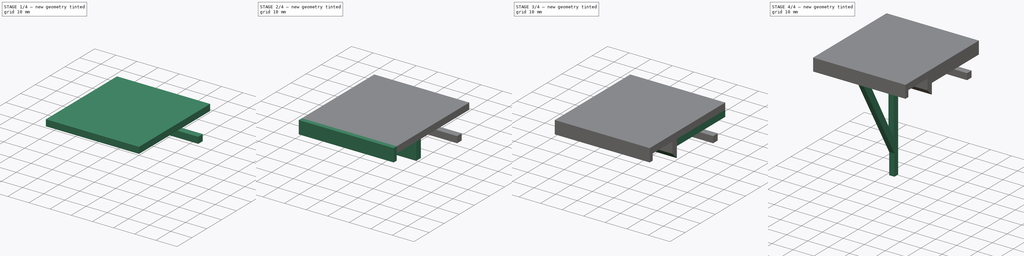
[diagram: build sequence overview — one tinted view per stage of 4, left to right]
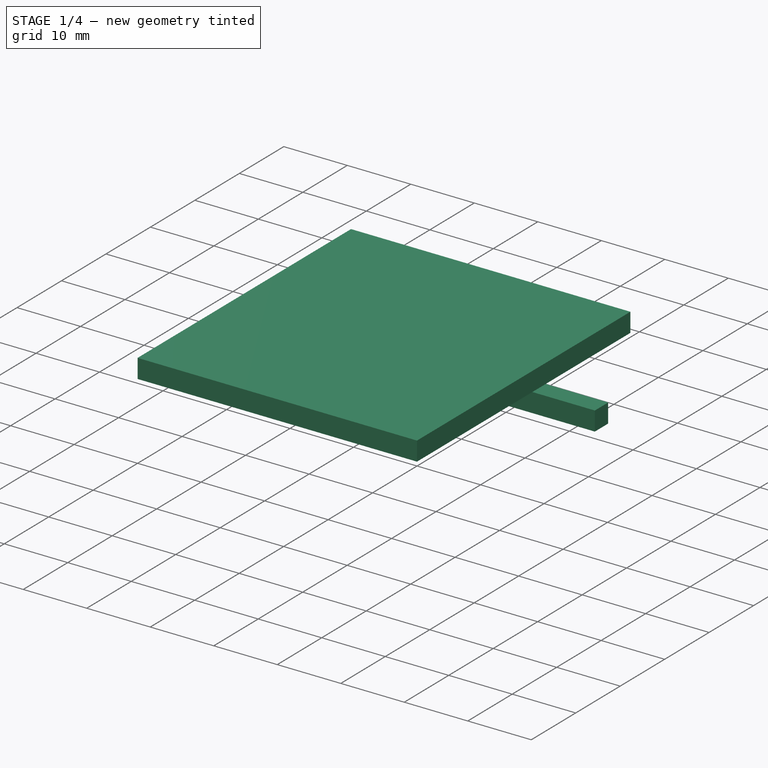
[diagram: stage 1 of 4 — iso view after this stage's code; geometry added in this stage tinted green]
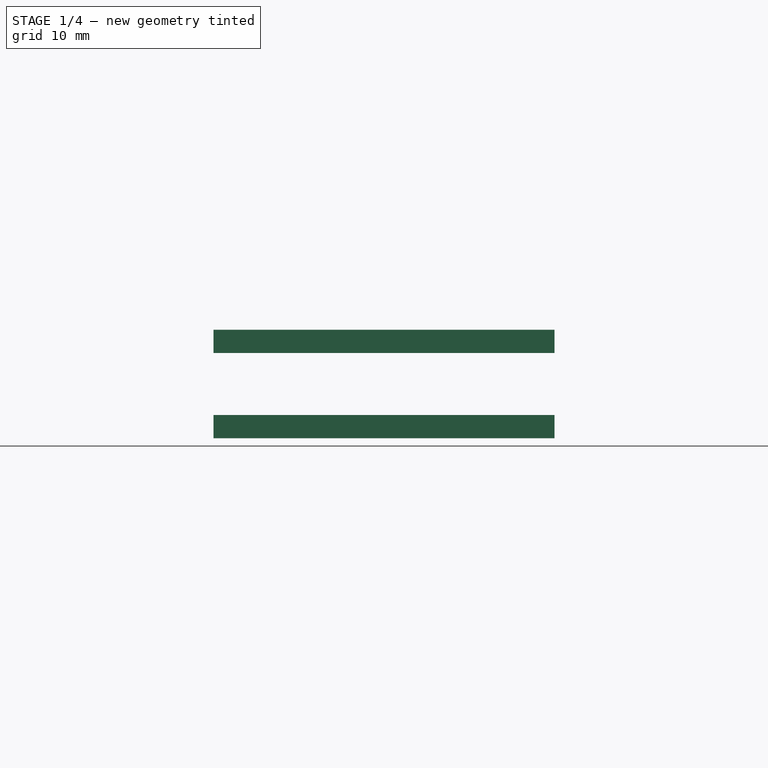
[diagram: stage 1 of 4 — front view after this stage's code; geometry added in this stage tinted green]
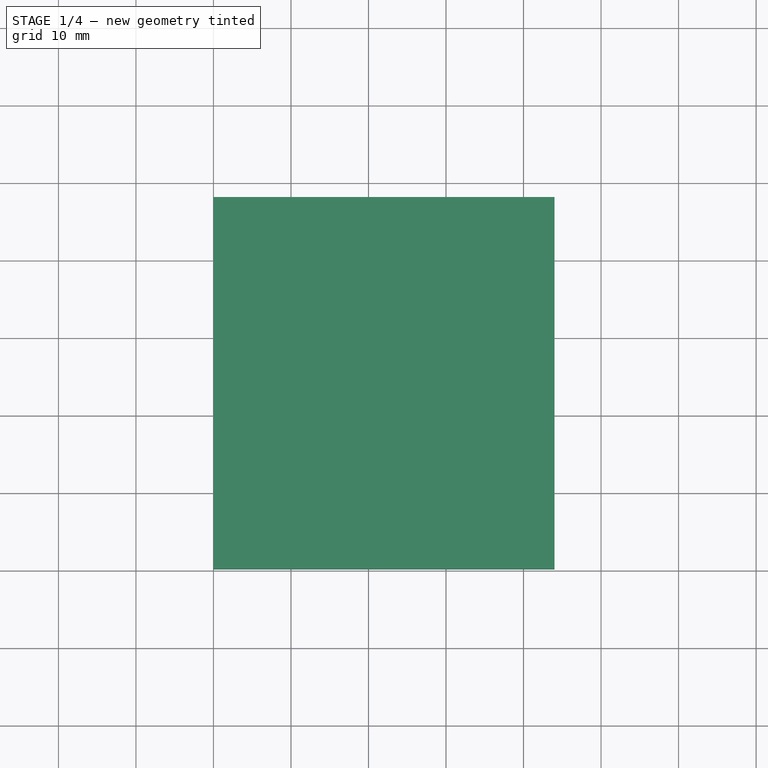
[diagram: stage 1 of 4 — top view after this stage's code; geometry added in this stage tinted green]
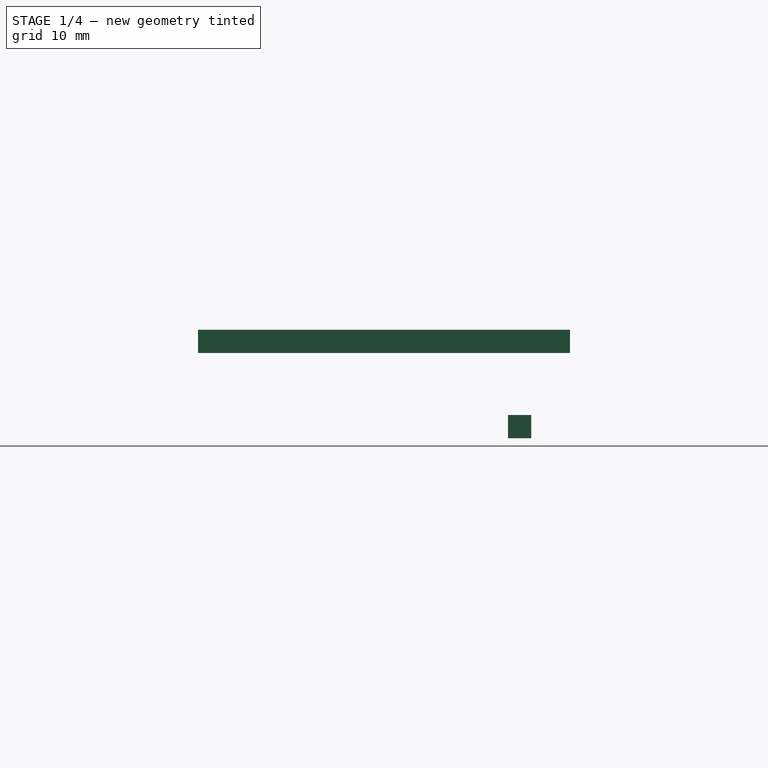
[diagram: stage 1 of 4 — right view after this stage's code; geometry added in this stage tinted green]
FCSTD DOCUMENT  (FreeCAD 1.0R39109 (Git))
Label: webcam.mount
License: All rights reserved
LicenseURL: http://en.wikipedia.org/wiki/All_rights_reserved
objects: PartDesign::AdditiveBox×5, PartDesign::Body×3, PartDesign::LinearPattern×2, PartDesign::Chamfer×1, Sketcher::SketchObject×1, PartDesign::Pad×1
note: 30 computed .brp shape members not serialized (recipe doc carries the construction recipe); baked Part::Feature solids carry a one-line shape summary decoded from their .brp

FEATURE [PartDesign::AdditiveBox] Box
  AttacherType = Attacher::AttachEngine3D
  AttachmentSupport = -> [XY_Plane]
  Height = 3
  Length = 44
  MapMode = 5
  Suppressed = false
  Width = 48
FEATURE [PartDesign::Body] Body  label="Plate"
  AllowCompound = false
  Group = -> [Box,Box001,Box002,Chamfer,Box003,LinearPattern001]
  Origin = -> Origin
  Tip = -> LinearPattern001
FEATURE [PartDesign::AdditiveBox] Box004
  AttacherType = Attacher::AttachEngine3D
  AttachmentOffset = pos=(0,40,-11) rot=(0,0,1;0rad)
  AttachmentSupport = -> [XY_Plane002]
  Height = 3
  Length = 44
  MapMode = 5
  Placement = pos=(0,40,-11) rot=(0,0,1;0rad)
  Suppressed = false
  Width = 3
FEATURE [PartDesign::Body] Body002  label="Bar"
  AllowCompound = false
  Group = -> [Box004]
  Origin = -> Origin002
  Tip = -> Box004
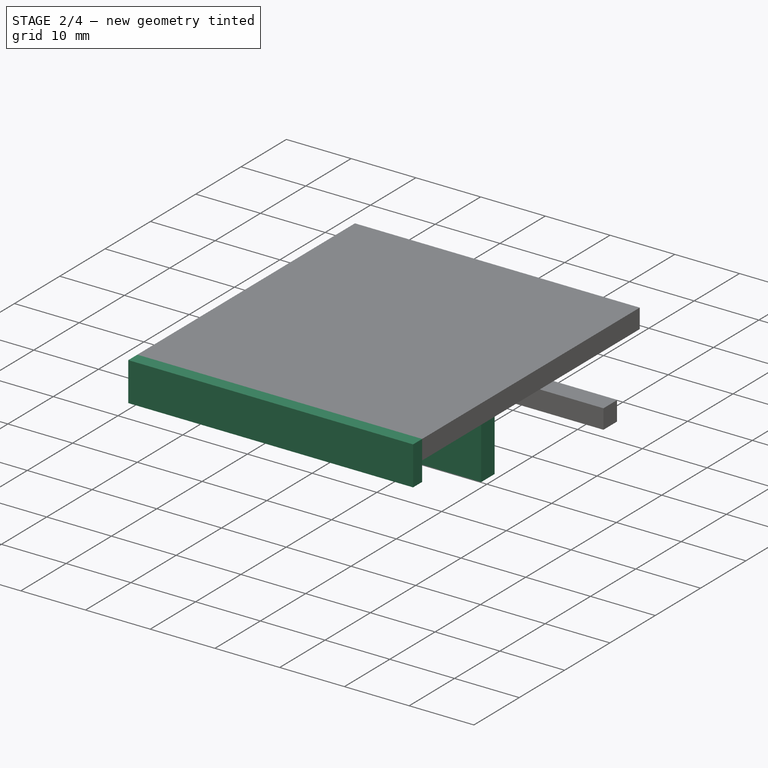
[diagram: stage 2 of 4 — iso view after this stage's code; geometry added in this stage tinted green]
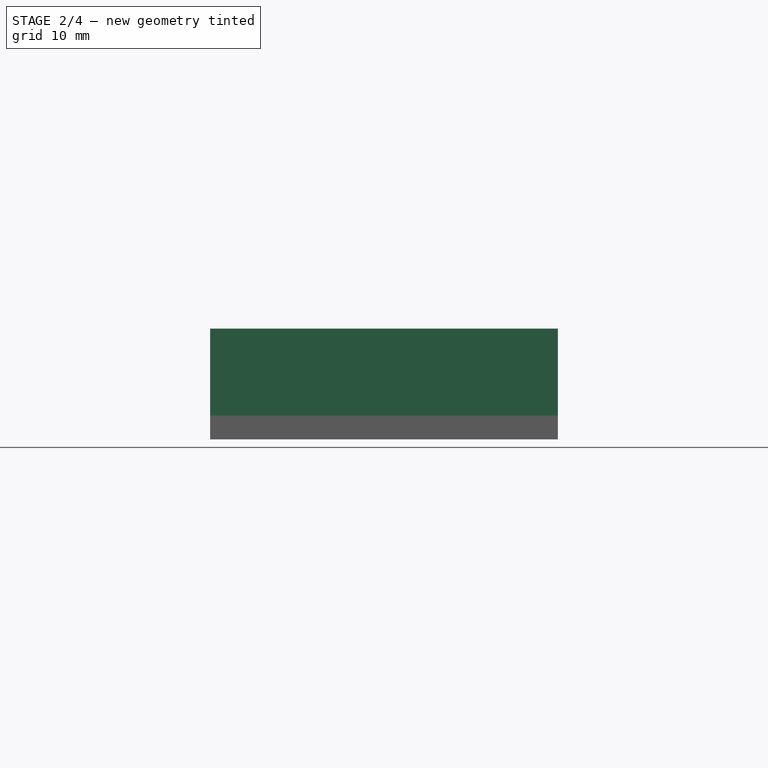
[diagram: stage 2 of 4 — front view after this stage's code; geometry added in this stage tinted green]
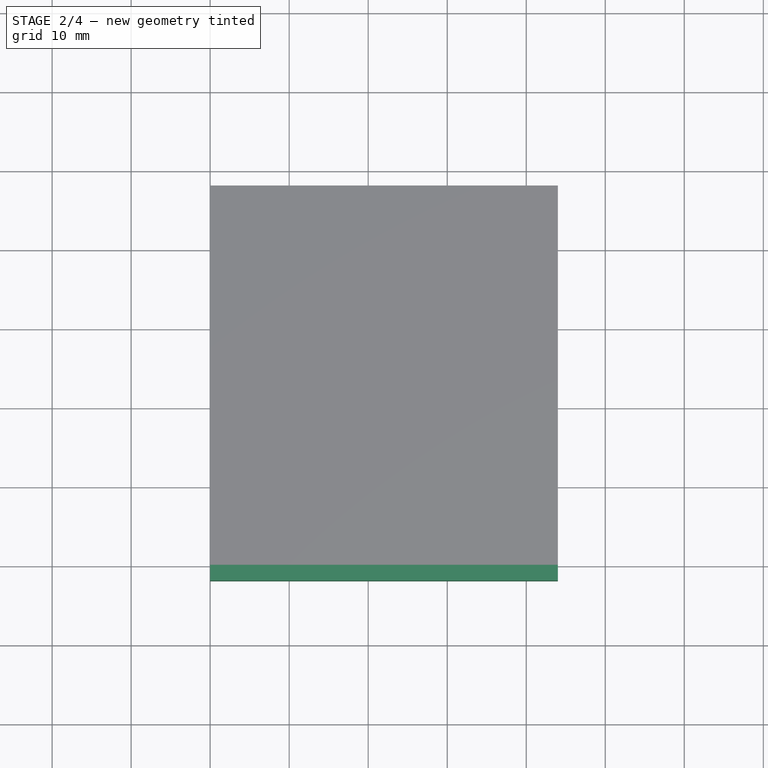
[diagram: stage 2 of 4 — top view after this stage's code; geometry added in this stage tinted green]
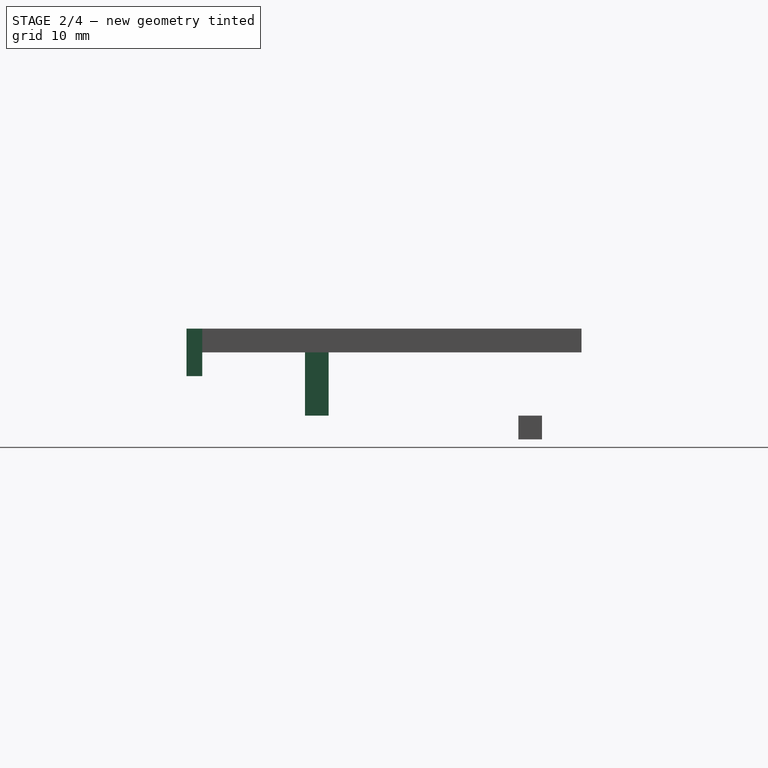
[diagram: stage 2 of 4 — right view after this stage's code; geometry added in this stage tinted green]
FEATURE [PartDesign::AdditiveBox] Box001
  AttacherType = Attacher::AttachEngine3D
  AttachmentOffset = pos=(0,-2,-3) rot=(0,0,1;0rad)
  AttachmentSupport = -> [XY_Plane]
  BaseFeature = -> Box
  Height = 6
  Length = 44
  MapMode = 5
  Placement = pos=(0,-2,-3) rot=(0,0,1;0rad)
  Suppressed = false
  Width = 2
FEATURE [PartDesign::AdditiveBox] Box002
  AttacherType = Attacher::AttachEngine3D
  AttachmentOffset = pos=(0,13,-8) rot=(0,0,1;0rad)
  AttachmentSupport = -> [XY_Plane]
  BaseFeature = -> Box001
  Height = 8
  Length = 44
  MapMode = 5
  Placement = pos=(0,13,-8) rot=(0,0,1;0rad)
  Suppressed = false
  Width = 3
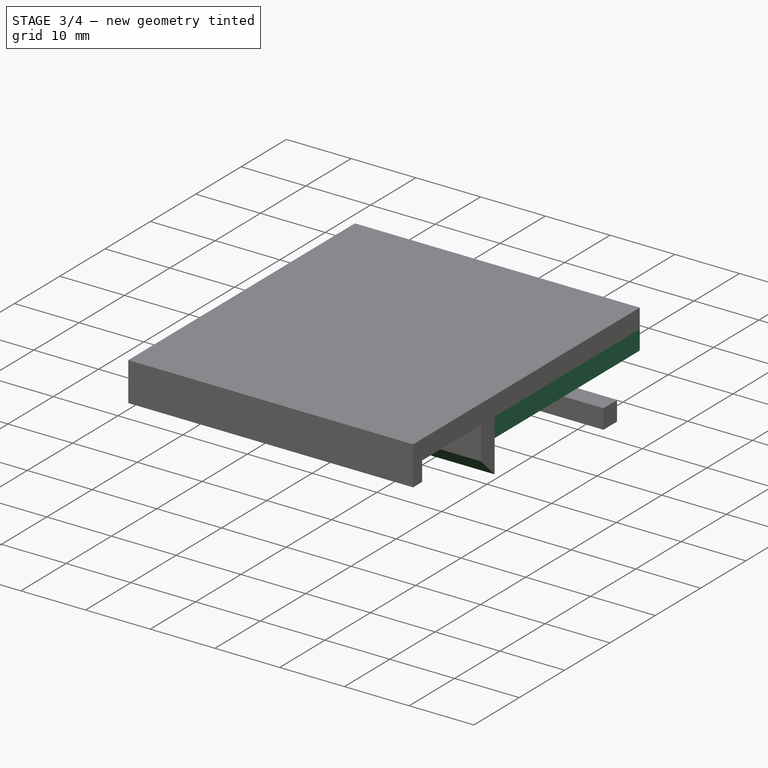
[diagram: stage 3 of 4 — iso view after this stage's code; geometry added in this stage tinted green]
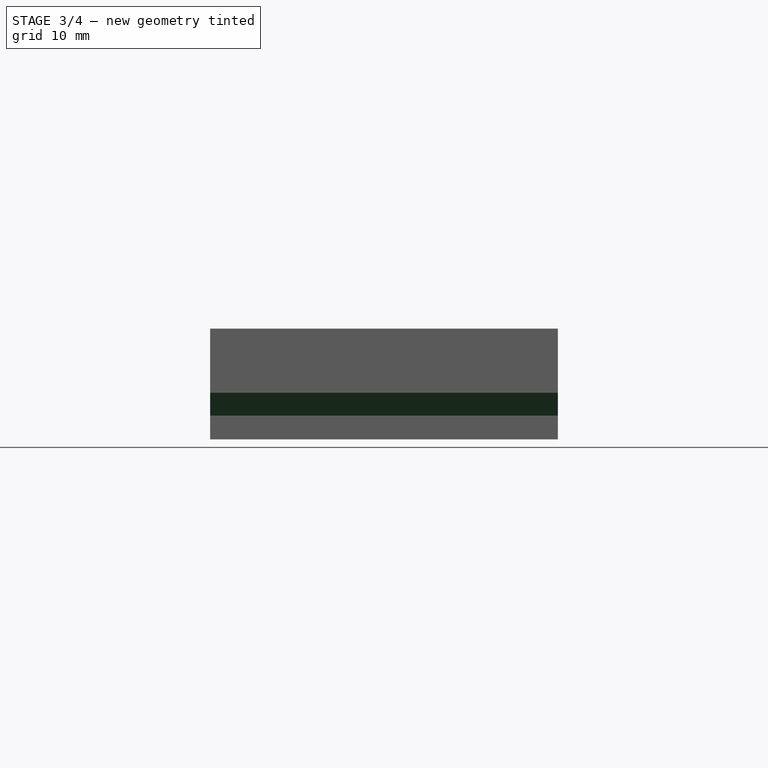
[diagram: stage 3 of 4 — front view after this stage's code; geometry added in this stage tinted green]
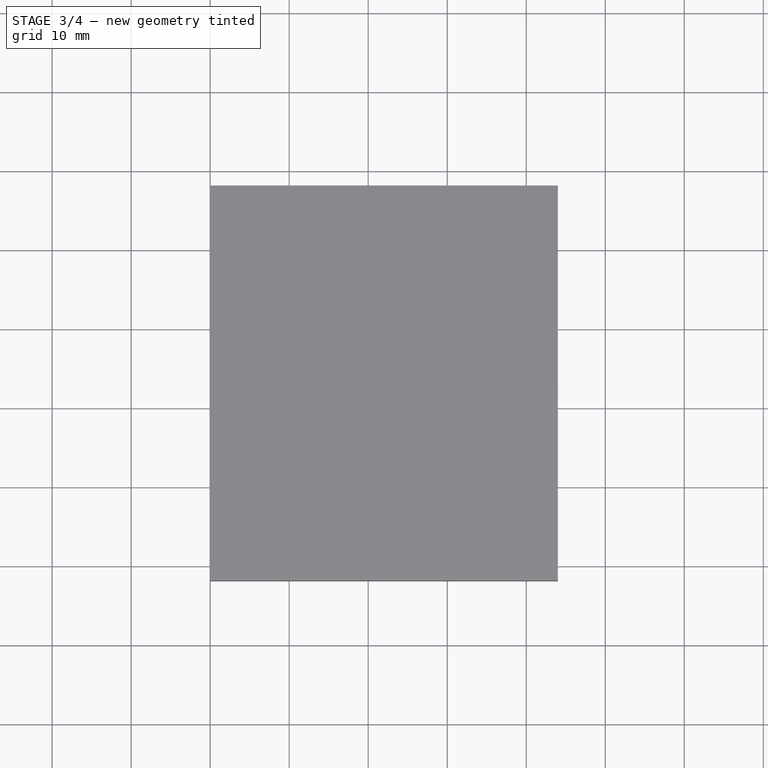
[diagram: stage 3 of 4 — top view after this stage's code; geometry added in this stage tinted green]
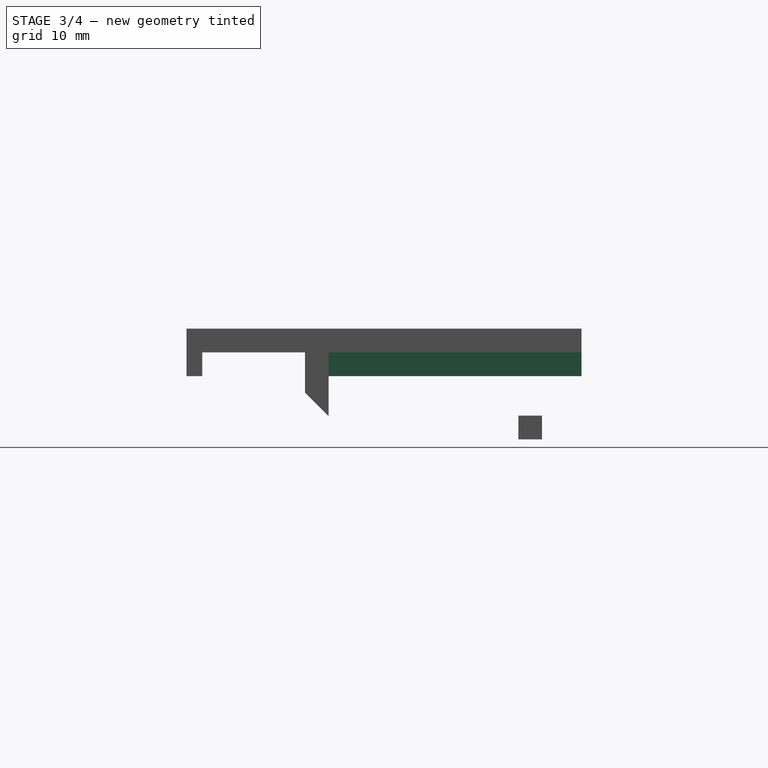
[diagram: stage 3 of 4 — right view after this stage's code; geometry added in this stage tinted green]
FEATURE [PartDesign::Chamfer] Chamfer
  Angle = 45
  Base = -> Box002 [Edge33]
  BaseFeature = -> Box002
  ChamferType = 0
  FlipDirection = false
  Placement = pos=(0,13,-8) rot=(0,0,1;0rad)
  Size = 2.9
  Size2 = 1
  SupportTransform = false
  Suppressed = false
  UseAllEdges = false
FEATURE [PartDesign::Body] Body001  label="Column"
  AllowCompound = false
  Group = -> [Sketch,Pad,LinearPattern]
  Origin = -> Origin001
  Tip = -> LinearPattern
FEATURE [PartDesign::AdditiveBox] Box003
  AttacherType = Attacher::AttachEngine3D
  AttachmentOffset = pos=(0,16,-3) rot=(0,0,1;0rad)
  AttachmentSupport = -> [XY_Plane]
  BaseFeature = -> Chamfer
  Height = 3
  Length = 3
  MapMode = 5
  Placement = pos=(0,16,-3) rot=(0,0,1;0rad)
  Suppressed = false
  Width = 32
FEATURE [PartDesign::LinearPattern] LinearPattern001
  BaseFeature = -> Box003
  Direction = -> X_Axis
  Length = 41
  Mode = 0
  Occurrences = 8
  Offset = 5.85714
  Originals = -> [Box003]
  Placement = pos=(0,16,-3) rot=(0,0,1;0rad)
  Suppressed = false
  TransformMode = 0
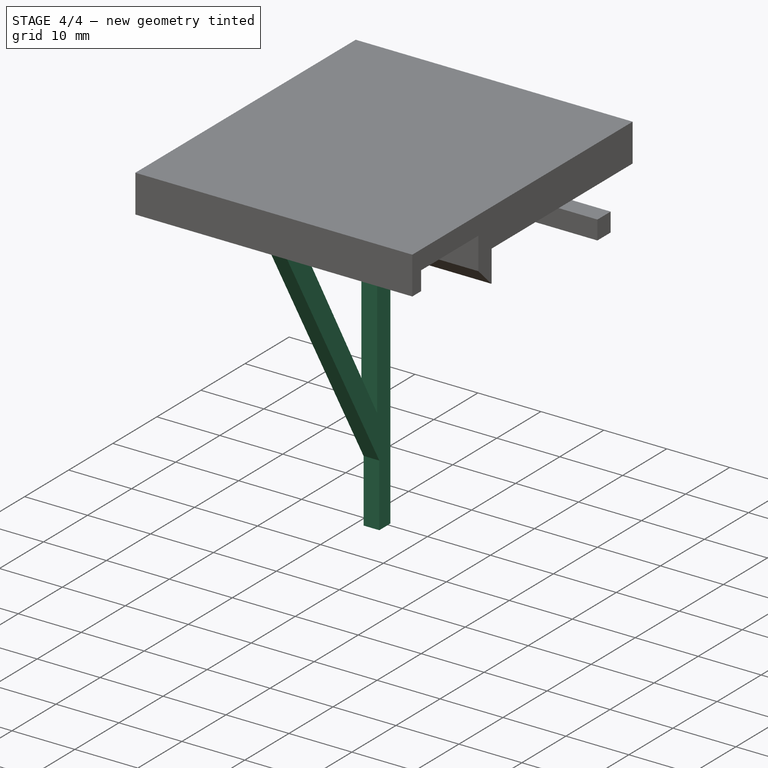
[diagram: stage 4 of 4 — iso view after this stage's code; geometry added in this stage tinted green]
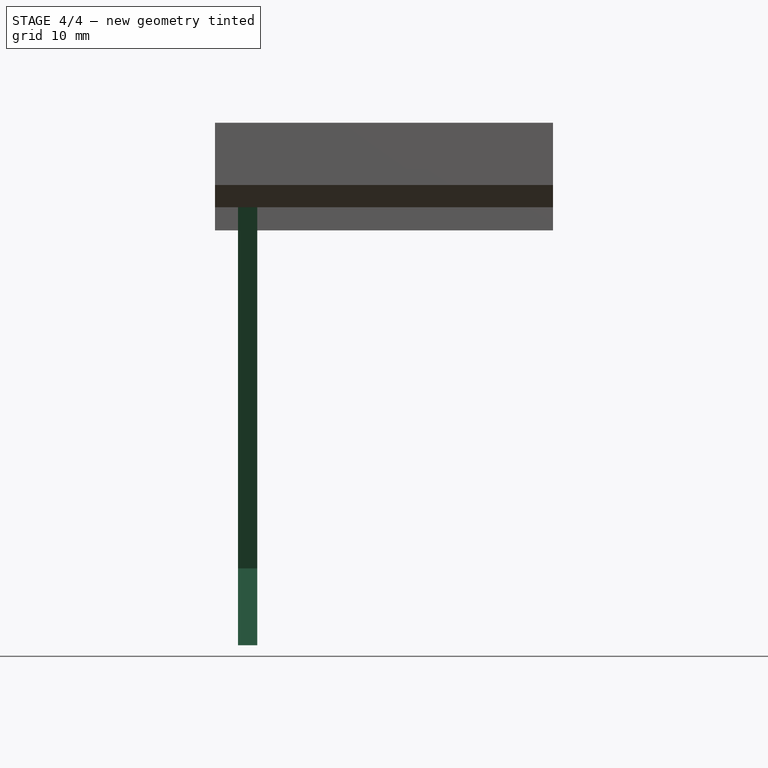
[diagram: stage 4 of 4 — front view after this stage's code; geometry added in this stage tinted green]
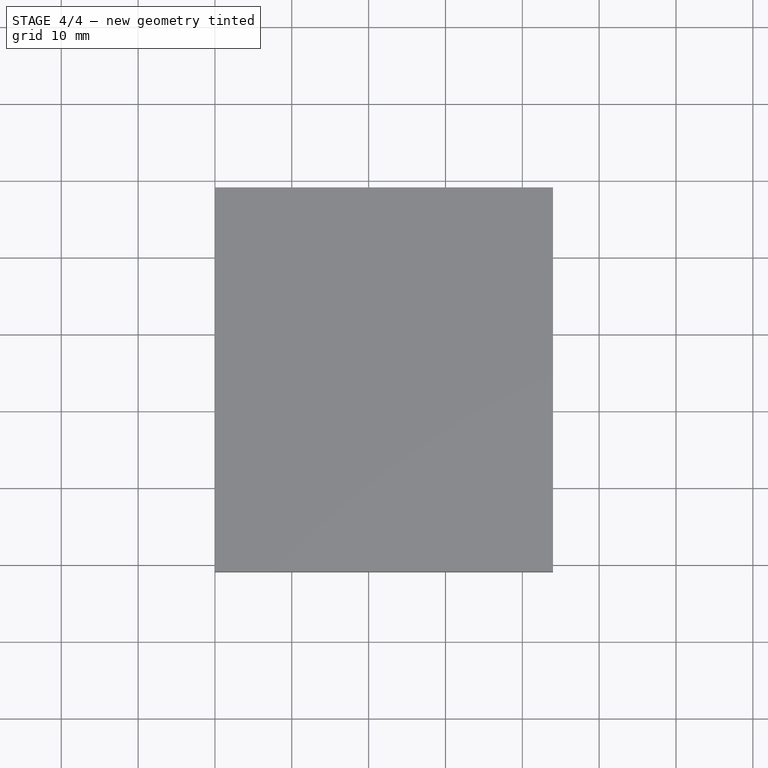
[diagram: stage 4 of 4 — top view after this stage's code; geometry added in this stage tinted green]
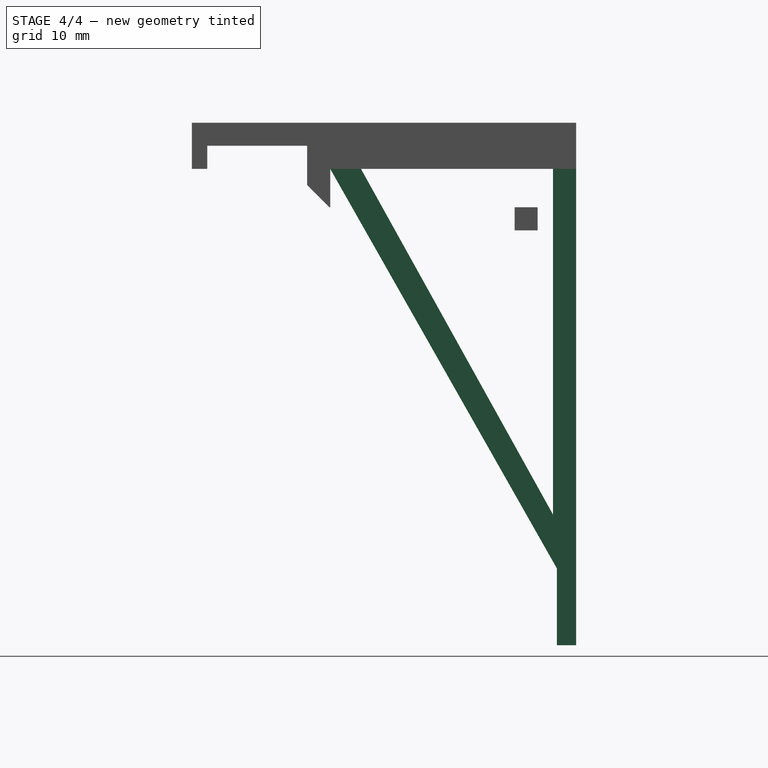
[diagram: stage 4 of 4 — right view after this stage's code; geometry added in this stage tinted green]
FEATURE [Sketcher::SketchObject] Sketch
  ArcFitTolerance = 0
  AttachmentOffset = pos=(0,0,3) rot=(0,0,1;0rad)
  AttachmentSupport = -> [YZ_Plane001]
  FullyConstrained = true
  MakeInternals = false
  MapMode = 5
  Placement = pos=(3,0,0) rot=(0.57735,0.57735,0.57735;2.0944rad)
  sketch-geometry (9):
    g0: LineSegment StartX=16 StartY=0 StartZ=0 EndX=16 EndY=-3 EndZ=0
    g1: LineSegment StartX=16 StartY=-3 StartZ=0 EndX=45.5 EndY=-55 EndZ=0
    g2: LineSegment StartX=16 StartY=0 StartZ=0 EndX=48 EndY=0 EndZ=0
    g3: LineSegment StartX=48 StartY=0 StartZ=0 EndX=48 EndY=-65 EndZ=0
    g4: LineSegment StartX=20 StartY=-3 StartZ=0 EndX=45 EndY=-3 EndZ=0
    g5: LineSegment StartX=20 StartY=-3 StartZ=0 EndX=45 EndY=-48 EndZ=0
    g6: LineSegment StartX=45 StartY=-48 StartZ=0 EndX=45 EndY=-3 EndZ=0
    g7: LineSegment StartX=45.5 StartY=-65 StartZ=0 EndX=48 EndY=-65 EndZ=0
    g8: LineSegment StartX=45.5 StartY=-55 StartZ=0 EndX=45.5 EndY=-65 EndZ=0
  constraints (27):
    c: Horizontal(g2)
    c: Vertical(g3)
    c: Horizontal(g4)
    c: Vertical(g6)
    c: Parallel(g0,g3)
    c: Coincident(g3,g2)
    c: DistanceX(g2,g2) = 32
    c: Coincident(g2,g0)
    c: Coincident(g6,g4)
    c: Coincident(g4,g5)
    c: Coincident(g0,g1)
    c: DistanceX(g-1,g0) = 16
    c: DistanceY(g-1,g0) = 0
    c: DistanceY(g0,g0) = 3
    c: DistanceY(g4) = -3
    c: DistanceY(g3,g3) = 65
    c: Horizontal(g7)
    c: Vertical(g8)
    c: Coincident(g3,g7)
    c: DistanceX(g7,g7) = 2.5
    c: Coincident(g7,g8)
    c: DistanceY(g8,g8) = 10
    c: Coincident(g8,g1)
    c: DistanceX(g0,g4) = 4
    c: Coincident(g6,g5)
    c: DistanceX(g4,g2) = 3
    c: DistanceY(g1,g5) = 7
FEATURE [PartDesign::Pad] Pad
  Direction = (1,0,0)
  Length = 2.5
  Length2 = 10
  Placement = pos=(0,0,0) rot=(0.57735,0.57735,0.57735;2.0944rad)
  Profile = -> Sketch
  ReferenceAxis = -> Sketch [N_Axis]
  Suppressed = false
  Type = 0
FEATURE [PartDesign::LinearPattern] LinearPattern
  BaseFeature = -> Pad
  Direction = -> Sketch [N_Axis]
  Length = 35.5
  Mode = 0
  Occurrences = 4
  Offset = 11.8333
  Originals = -> [Pad]
  Placement = pos=(0,0,0) rot=(0.57735,0.57735,0.57735;2.0944rad)
  Suppressed = false
  TransformMode = 0
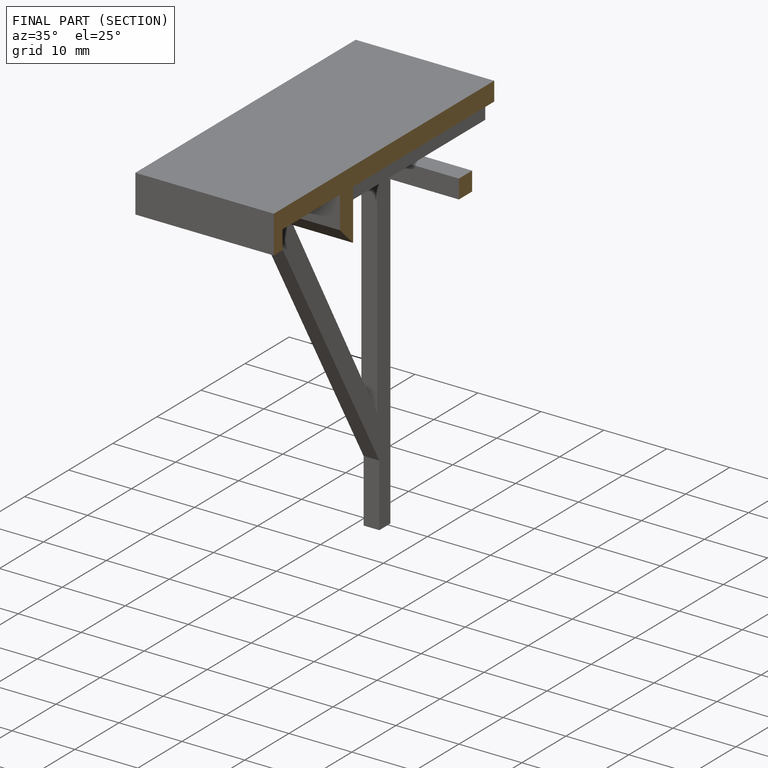
[diagram: finished part — half-section view (interior)]
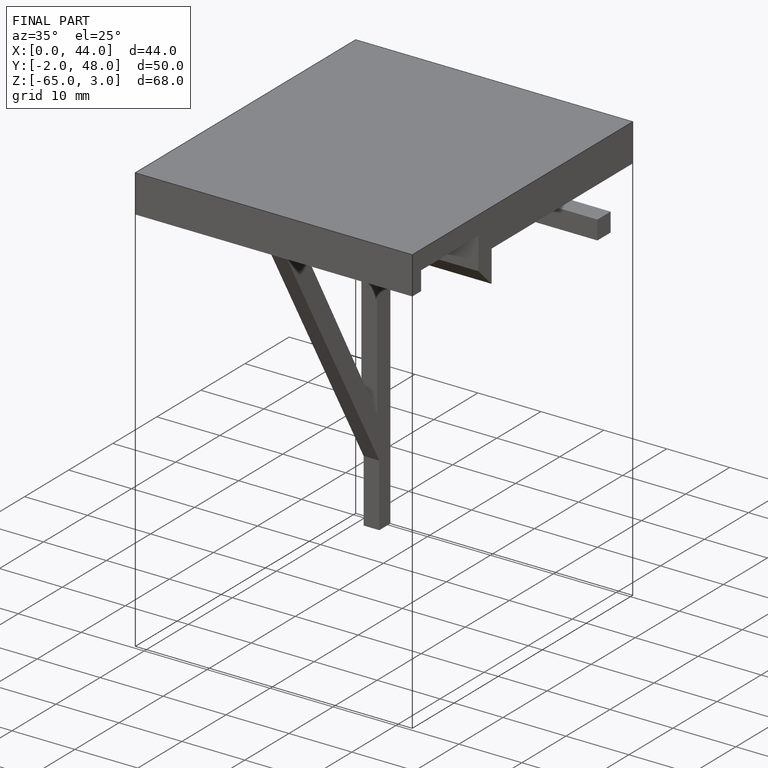
[diagram: finished part — iso view with bounding-box wireframe]
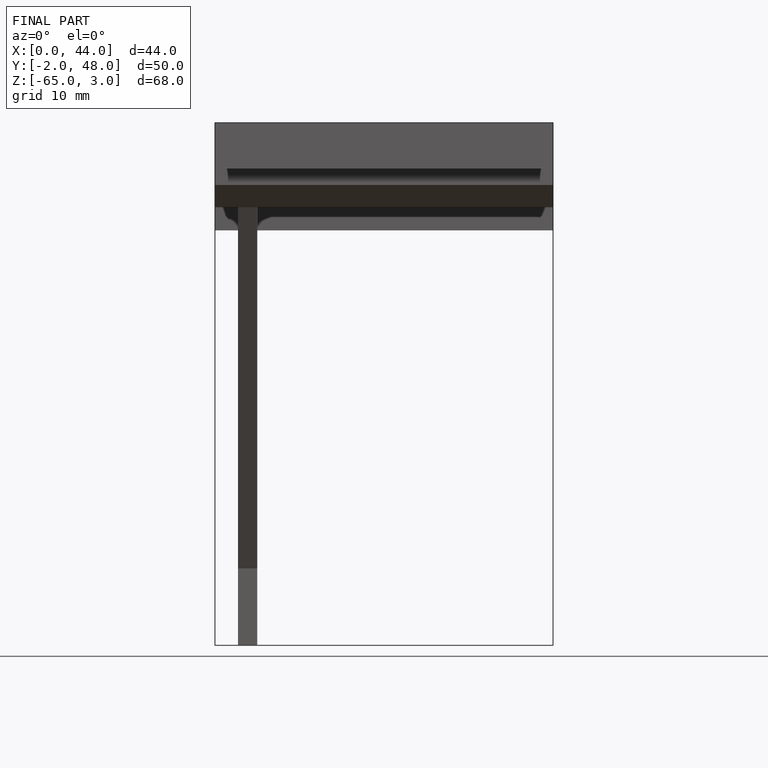
[diagram: finished part — front view with bounding-box wireframe]
